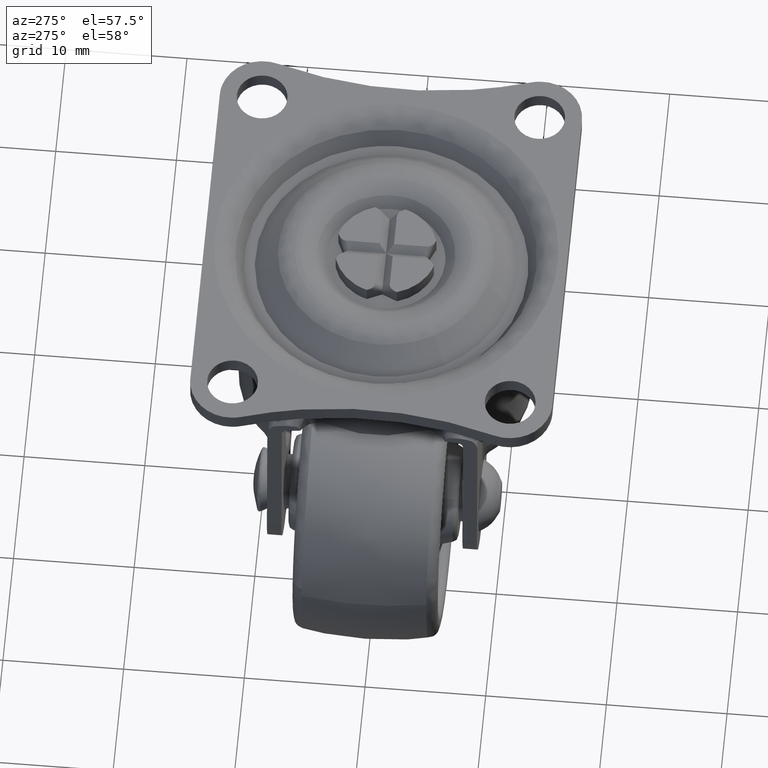
[diagram: clean part render]
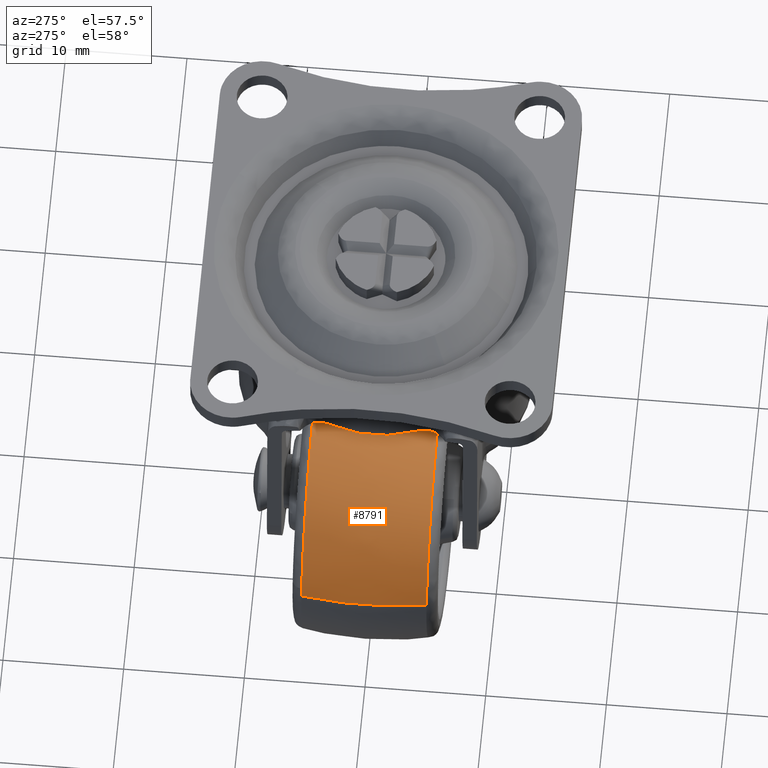
[diagram: same view with one face highlighted and labeled with its STEP entity id]
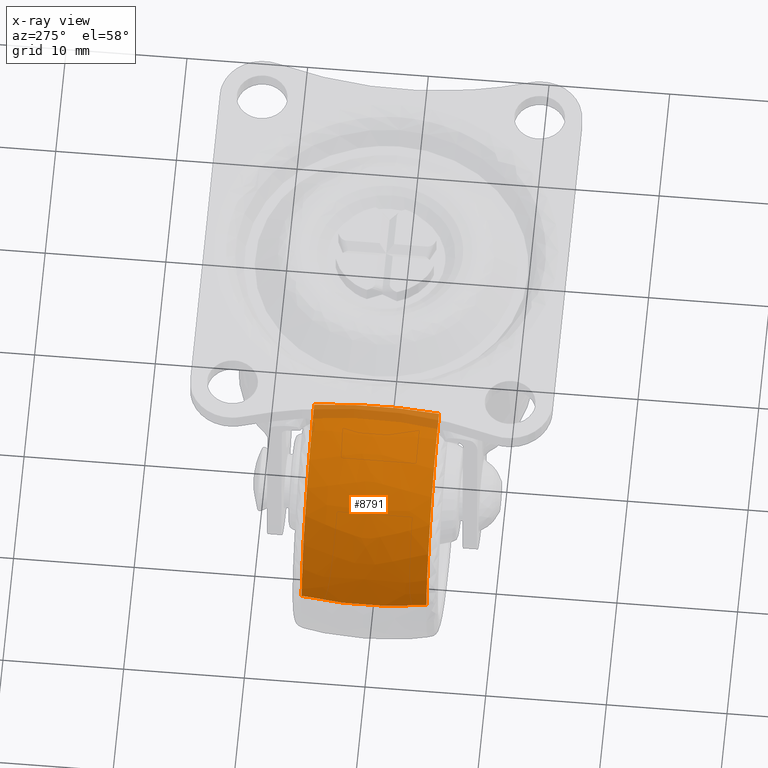
[diagram: x-ray of the same camera — body ghosted, the highlighted face saturated]
A machine part, auxiliary view. The second image highlights one B-rep face of the part: STEP entity #8791.
The next image is the same camera in x-ray: the body ghosted, the highlighted face saturated — about 7% of this face is hidden behind the body in this view.
In plain terms, the highlighted face is a freeform B-spline surface patch.
Its self-contained STEP definition (entity closure, byte-faithful):
#8273=CARTESIAN_POINT('',(-11.837287781928520,5.172407707310660,2.258083411008943));
#8274=VERTEX_POINT('',#8273);
#8288=CARTESIAN_POINT('',(0.0,5.172406266732837,12.050739642381380));
#8289=VERTEX_POINT('',#8288);
#8290=CARTESIAN_POINT('',(0.0,5.172406266732837,12.050739642381380));
#8291=CARTESIAN_POINT('',(-9.969238220503419,5.172406951599392,12.050739090881830));
#8292=CARTESIAN_POINT('',(-11.837287781928524,5.172407707310660,2.258083411008944));
#8300=(BOUNDED_CURVE()B_SPLINE_CURVE(2,(#8290,#8291,#8292),.UNSPECIFIED.,.F.,.U.)B_SPLINE_CURVE_WITH_KNOTS((3,3),(0.500000000000000,0.717838633480021),.UNSPECIFIED.)CURVE()GEOMETRIC_REPRESENTATION_ITEM()RATIONAL_B_SPLINE_CURVE((1.0,0.744786165832451,0.934335794706946))REPRESENTATION_ITEM(''));
#8301=EDGE_CURVE('',#8289,#8274,#8300,.T.);
#8390=CARTESIAN_POINT('',(-11.970140016315360,5.172407741140701,1.391426497640320));
#8391=VERTEX_POINT('',#8390);
#8407=CARTESIAN_POINT('',(-11.837287781928515,5.172407707310660,2.258083411008944));
#8408=CARTESIAN_POINT('',(-11.919488185876139,5.172407711004230,1.827173036842464));
#8409=CARTESIAN_POINT('',(-11.970140016315366,5.172407741140701,1.391426497640319));
#8417=(BOUNDED_CURVE()B_SPLINE_CURVE(2,(#8407,#8408,#8409),.UNSPECIFIED.,.F.,.U.)B_SPLINE_CURVE_WITH_KNOTS((3,3),(0.717838633480020,0.730000040107683),.UNSPECIFIED.)CURVE()GEOMETRIC_REPRESENTATION_ITEM()RATIONAL_B_SPLINE_CURVE((0.934335794706944,0.944917894291574,0.956886197132318))REPRESENTATION_ITEM(''));
#8418=EDGE_CURVE('',#8274,#8391,#8417,.T.);
#8604=CARTESIAN_POINT('',(0.0,-5.172410136195015,12.050738965091121));
#8605=VERTEX_POINT('',#8604);
#8619=CARTESIAN_POINT('',(-11.970139971412030,-5.172408003172473,1.391426486713733));
#8620=VERTEX_POINT('',#8619);
#8621=CARTESIAN_POINT('',(0.0,-5.172410136195015,12.050738965091121));
#8622=CARTESIAN_POINT('',(-10.731085540663592,-5.172409069683743,12.050738707443356));
#8623=CARTESIAN_POINT('',(-11.970139971412024,-5.172408003172473,1.391426486713734));
#8631=(BOUNDED_CURVE()B_SPLINE_CURVE(2,(#8621,#8622,#8623),.UNSPECIFIED.,.F.,.U.)B_SPLINE_CURVE_WITH_KNOTS((3,3),(0.500000000000000,0.730000040187255),.UNSPECIFIED.)CURVE()GEOMETRIC_REPRESENTATION_ITEM()RATIONAL_B_SPLINE_CURVE((1.0,0.730538191609326,0.956886197288936))REPRESENTATION_ITEM(''));
#8632=EDGE_CURVE('',#8605,#8620,#8631,.T.);
#8724=CARTESIAN_POINT('',(0.0,-5.172410136195015,12.050738965091119));
#8725=CARTESIAN_POINT('',(0.0,-2.605715844715455,12.499999999999996));
#8726=CARTESIAN_POINT('',(0.0,0.0,12.500000000000000));
#8727=CARTESIAN_POINT('',(0.0,2.605713865752787,12.499999999999996));
#8728=CARTESIAN_POINT('',(0.0,5.172406266732837,12.050739642381384));
#8736=(BOUNDED_CURVE()B_SPLINE_CURVE(2,(#8724,#8725,#8726,#8727,#8728),.UNSPECIFIED.,.F.,.U.)B_SPLINE_CURVE_WITH_KNOTS((3,2,3),(0.406807765555441,0.500000000000000,0.593192165122160),.UNSPECIFIED.)CURVE()GEOMETRIC_REPRESENTATION_ITEM()RATIONAL_B_SPLINE_CURVE((0.966564189407325,0.979452327718583,1.0,0.979452343003267,0.966564208581387))REPRESENTATION_ITEM(''));
#8737=EDGE_CURVE('',#8605,#8289,#8736,.T.);
#8743=CARTESIAN_POINT('',(-11.970139971412028,-5.172408003172473,1.391426486713734));
#8744=CARTESIAN_POINT('',(-12.416395815220577,-2.605714753821669,1.443300024164258));
#8745=CARTESIAN_POINT('',(-12.416395815055697,-3.996808E-015,1.443300025582591));
#8746=CARTESIAN_POINT('',(-12.416395814890818,2.605714619810509,1.443300027000926));
#8747=CARTESIAN_POINT('',(-11.970140016315362,5.172407741140701,1.391426497640320));
#8755=(BOUNDED_CURVE()B_SPLINE_CURVE(2,(#8743,#8744,#8745,#8746,#8747),.UNSPECIFIED.,.F.,.U.)B_SPLINE_CURVE_WITH_KNOTS((3,2,3),(0.406807803769081,0.500000000000000,0.593192191536553),.UNSPECIFIED.)CURVE()GEOMETRIC_REPRESENTATION_ITEM()RATIONAL_B_SPLINE_CURVE((0.924891865297989,0.937224343885789,0.956886118190660,0.937224344876211,0.924891866540435))REPRESENTATION_ITEM(''));
#8756=EDGE_CURVE('',#8620,#8391,#8755,.T.);
#8761=CARTESIAN_POINT('',(0.0,-5.691923714261433,11.955084525952870));
#8762=CARTESIAN_POINT('',(0.0,-2.872045558244984,12.499999999999995));
#8763=CARTESIAN_POINT('',(0.0,0.0,12.500000000000000));
#8764=CARTESIAN_POINT('',(0.0,2.872045558244979,12.499999999999995));
#8765=CARTESIAN_POINT('',(0.0,5.691923714261425,11.955084525952870));
#8766=CARTESIAN_POINT('',(-10.645903553045651,-5.691923714261435,11.955084525952872));
#8767=CARTESIAN_POINT('',(-11.131146260336795,-2.872045558244985,12.499999999999998));
#8768=CARTESIAN_POINT('',(-11.131146260336793,0.0,12.499999999999998));
#8769=CARTESIAN_POINT('',(-11.131146260336793,2.872045558244979,12.499999999999996));
#8770=CARTESIAN_POINT('',(-10.645903553045649,5.691923714261425,11.955084525952870));
#8771=CARTESIAN_POINT('',(-11.875124602288420,-5.691923714261434,1.380384621329173));
#8772=CARTESIAN_POINT('',(-12.416395484813521,-2.872045558244984,1.443302866588422));
#8773=CARTESIAN_POINT('',(-12.416395484813515,0.0,1.443302866588422));
#8774=CARTESIAN_POINT('',(-12.416395484813521,2.872045558244980,1.443302866588422));
#8775=CARTESIAN_POINT('',(-11.875124602288420,5.691923714261424,1.380384621329174));
#8783=(BOUNDED_SURFACE()B_SPLINE_SURFACE(2,2,((#8761,#8766,#8771),(#8762,#8767,#8772),(#8763,#8768,#8773),(#8764,#8769,#8774),(#8765,#8770,#8775)),.UNSPECIFIED.,.F.,.F.,.U.)B_SPLINE_SURFACE_WITH_KNOTS((3,2,3),(3,3),(0.0,5.823537890370077,11.647075780740151),(0.0,19.032924454294449),.UNSPECIFIED.)GEOMETRIC_REPRESENTATION_ITEM()RATIONAL_B_SPLINE_SURFACE(((0.964065585807900,0.704286775039311,0.922500976084926),(0.977399618825133,0.714027796034377,0.935260127178612),(1.0,0.730538238691624,0.956886118190660),(0.977399618825133,0.714027796034377,0.935260127178612),(0.964065585807900,0.704286775039311,0.922500976084926)))REPRESENTATION_ITEM('')SURFACE());
#8784=ORIENTED_EDGE('',*,*,#8301,.T.);
#8785=ORIENTED_EDGE('',*,*,#8418,.T.);
#8786=ORIENTED_EDGE('',*,*,#8756,.F.);
#8787=ORIENTED_EDGE('',*,*,#8632,.F.);
#8788=ORIENTED_EDGE('',*,*,#8737,.T.);
#8789=EDGE_LOOP('',(#8784,#8785,#8786,#8787,#8788));
#8790=FACE_OUTER_BOUND('',#8789,.T.);
#8791=ADVANCED_FACE('',(#8790),#8783,.T.);